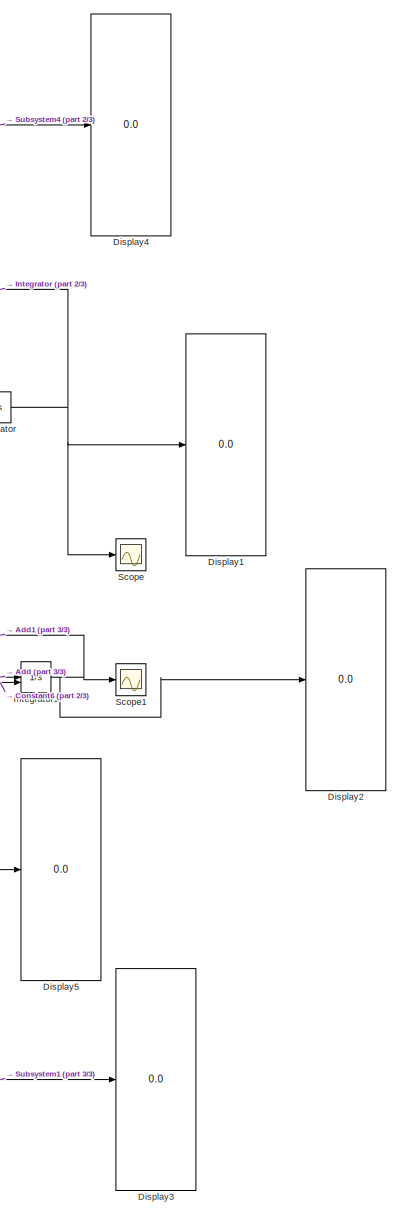
[diagram: root canvas - part 1/3, right side, full height]
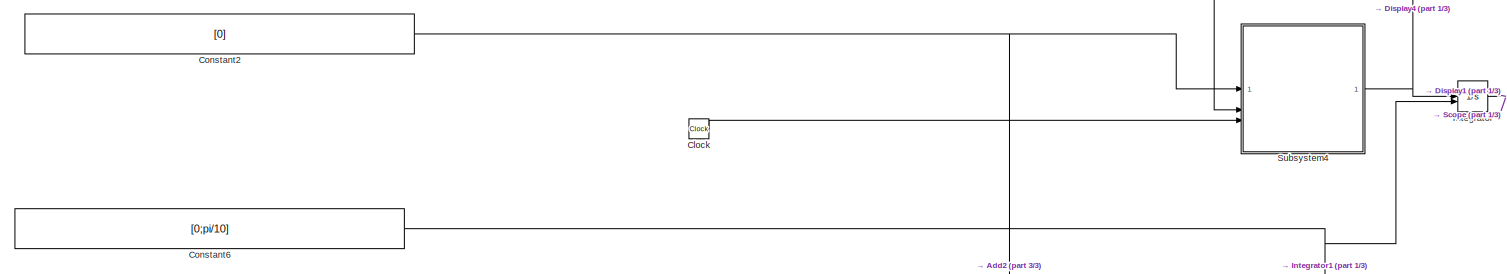
[diagram: root canvas - part 2/3, full width, middle band]
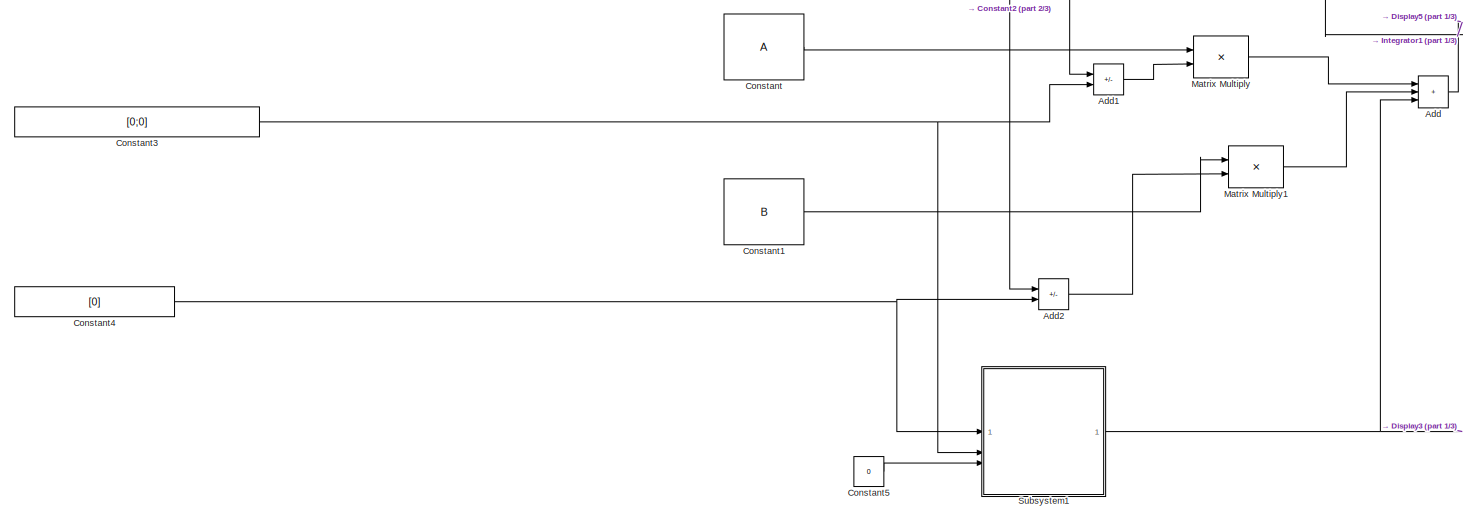
[diagram: root canvas - part 3/3, full width, bottom band]
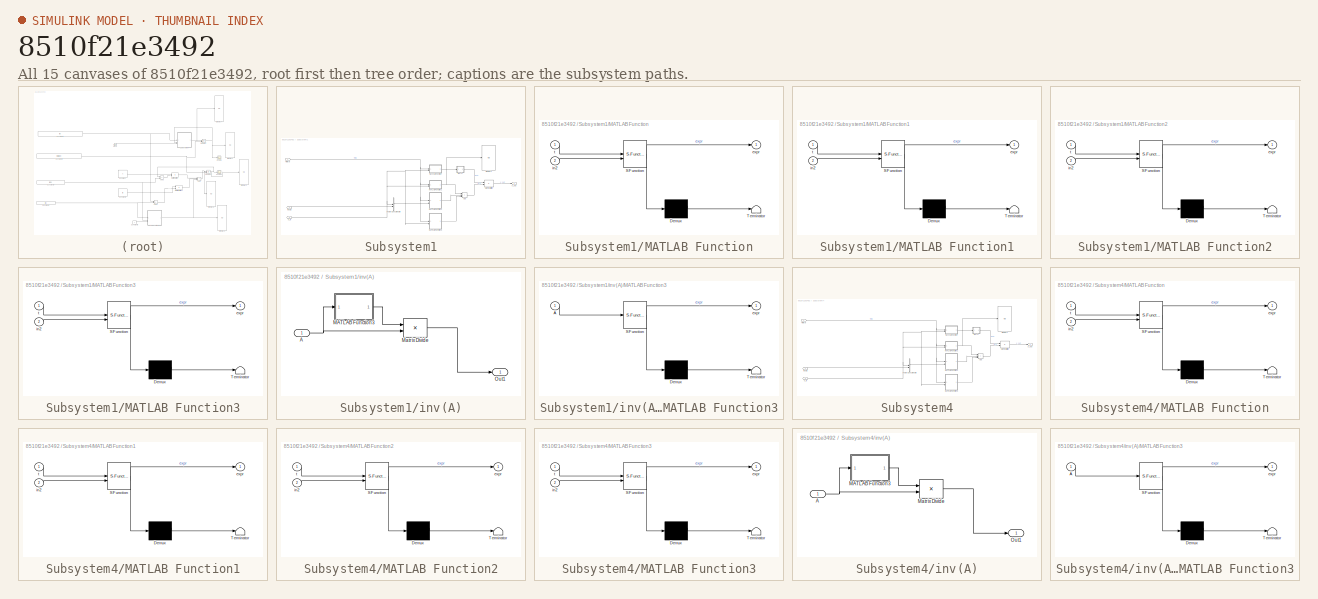
[diagram: thumbnail index - all 15 canvases of the model, root first then tree order]
MODEL slx_8510f21e3492
KIND model
CONFIG AbsTol = auto
CONFIG EnableMultiTasking = off
CONFIG FixedStep = 0.0167
CONFIG MaxStep = auto
CONFIG MinStep = auto
CONFIG RelTol = 1e-3
CONFIG SampleTimeConstraint = Unconstrained
CONFIG SolverName = ode4
CONFIG StartTime = 0.0
CONFIG StopTime = 10
BLOCK [Sum] Add
  IconShape = rectangular
  Inputs = +++
BLOCK [Sum] Add1
  IconShape = rectangular
  Inputs = +-
BLOCK [Sum] Add2
  IconShape = rectangular
  Inputs = +-
BLOCK [Clock] Clock
BLOCK [Constant] Constant
  Value = A
BLOCK [Constant] Constant1
  Value = B
BLOCK [Constant] Constant2
  Value = [0]
BLOCK [Constant] Constant3
  Value = [0;0]
BLOCK [Constant] Constant4
  Value = [0]
BLOCK [Constant] Constant5
  Value = 0
BLOCK [Constant] Constant6
  Value = [0;pi/10]
BLOCK [Display] Display1
  Decimation = 1
BLOCK [Display] Display2
  Decimation = 1
BLOCK [Display] Display3
  Decimation = 1
BLOCK [Display] Display4
  Decimation = 1
BLOCK [Display] Display5
  Decimation = 1
BLOCK [Integrator] Integrator
  InitialConditionSource = external
BLOCK [Integrator] Integrator1
  InitialConditionSource = external
BLOCK [Product] Matrix Multiply
  Multiplication = Matrix(*)
BLOCK [Product] Matrix Multiply1
  Multiplication = Matrix(*)
BLOCK [Scope] Scope
  Floating = off
  NumInputPorts = 1
  ScopeSpecificationString = Simulink.scopes.TimeScopeBlockCfg('CurrentConfiguration', extmgr.ConfigurationSet(extmgr.Configuration('Core','General UI',true),extmgr.Configuration('Core','Source UI',true),extmgr.Configuration('Sources','WiredSimulink',true,'DataLoggingVariableName','ScopeData1'),extmgr.Configuration('Visuals','Time Domain',true,'SerializedDisplays',{struct('MinYLimReal','-1.49942','MaxYLimReal','1.49944','YLab...<+1412ch>
BLOCK [Scope] Scope1
  Floating = off
  NumInputPorts = 1
  ScopeSpecificationString = Simulink.scopes.TimeScopeBlockCfg('CurrentConfiguration', extmgr.ConfigurationSet(extmgr.Configuration('Core','General UI',true),extmgr.Configuration('Core','Source UI',true),extmgr.Configuration('Sources','WiredSimulink',true),extmgr.Configuration('Visuals','Time Domain',true,'SerializedDisplays',{struct('MinYLimReal','-1.50562','MaxYLimReal','1.50563','YLabelReal','','MinYLimMag','0.00000','MaxY...<+1376ch>
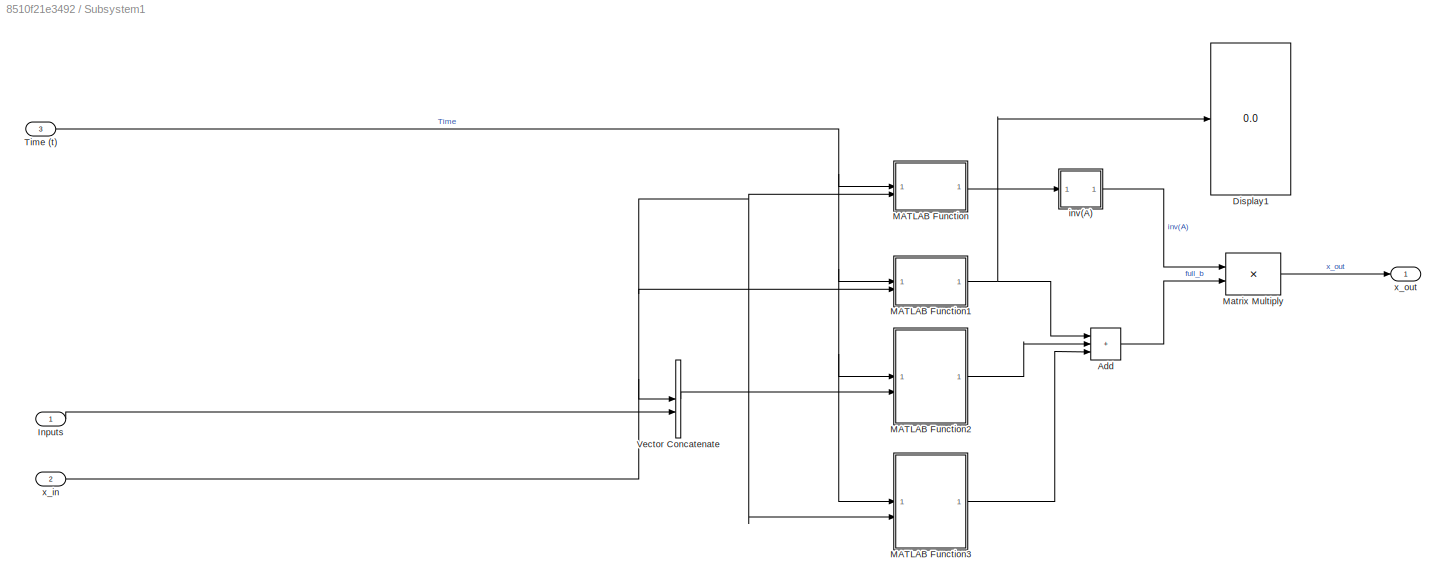
BLOCK [SubSystem] Subsystem1
BLOCK [Sum] Subsystem1/Add
  IconShape = rectangular
  Inputs = +++
BLOCK [Display] Subsystem1/Display1
  Decimation = 1
BLOCK [Inport] Subsystem1/Inputs
BLOCK [SubSystem] Subsystem1/MATLAB Function
  ErrorFcn = Stateflow.Translate.translate
  PermitHierarchicalResolution = ExplicitOnly
  SFBlockType = MATLAB Function
  TreatAsAtomicUnit = on
BLOCK [Demux] Subsystem1/MATLAB Function/ Demux 
  Outputs = 1
BLOCK [S-Function] Subsystem1/MATLAB Function/ SFunction 
  EnableBusSupport = on
  FunctionName = sf_sfun
  PortCounts = [2 2]
  SFcnIsStateOwnerBlock = off
  SFunctionDeploymentMode = off
  Tag = Stateflow S-Function 2
BLOCK [Terminator] Subsystem1/MATLAB Function/ Terminator 
BLOCK [Outport] Subsystem1/MATLAB Function/expr
BLOCK [Inport] Subsystem1/MATLAB Function/in2
  Port = 2
BLOCK [Inport] Subsystem1/MATLAB Function/t
BLOCK [SubSystem] Subsystem1/MATLAB Function1
  ErrorFcn = Stateflow.Translate.translate
  PermitHierarchicalResolution = ExplicitOnly
  SFBlockType = MATLAB Function
  TreatAsAtomicUnit = on
BLOCK [Demux] Subsystem1/MATLAB Function1/ Demux 
  Outputs = 1
BLOCK [S-Function] Subsystem1/MATLAB Function1/ SFunction 
  EnableBusSupport = on
  FunctionName = sf_sfun
  PortCounts = [2 2]
  SFcnIsStateOwnerBlock = off
  SFunctionDeploymentMode = off
  Tag = Stateflow S-Function 3
BLOCK [Terminator] Subsystem1/MATLAB Function1/ Terminator 
BLOCK [Outport] Subsystem1/MATLAB Function1/expr
BLOCK [Inport] Subsystem1/MATLAB Function1/in2
  Port = 2
BLOCK [Inport] Subsystem1/MATLAB Function1/t
BLOCK [SubSystem] Subsystem1/MATLAB Function2
  ErrorFcn = Stateflow.Translate.translate
  PermitHierarchicalResolution = ExplicitOnly
  SFBlockType = MATLAB Function
  TreatAsAtomicUnit = on
BLOCK [Demux] Subsystem1/MATLAB Function2/ Demux 
  Outputs = 1
BLOCK [S-Function] Subsystem1/MATLAB Function2/ SFunction 
  EnableBusSupport = on
  FunctionName = sf_sfun
  PortCounts = [2 2]
  SFcnIsStateOwnerBlock = off
  SFunctionDeploymentMode = off
  Tag = Stateflow S-Function 4
BLOCK [Terminator] Subsystem1/MATLAB Function2/ Terminator 
BLOCK [Outport] Subsystem1/MATLAB Function2/expr
BLOCK [Inport] Subsystem1/MATLAB Function2/in2
  Port = 2
BLOCK [Inport] Subsystem1/MATLAB Function2/t
BLOCK [SubSystem] Subsystem1/MATLAB Function3
  ErrorFcn = Stateflow.Translate.translate
  PermitHierarchicalResolution = ExplicitOnly
  SFBlockType = MATLAB Function
  TreatAsAtomicUnit = on
BLOCK [Demux] Subsystem1/MATLAB Function3/ Demux 
  Outputs = 1
BLOCK [S-Function] Subsystem1/MATLAB Function3/ SFunction 
  EnableBusSupport = on
  FunctionName = sf_sfun
  PortCounts = [2 2]
  SFcnIsStateOwnerBlock = off
  SFunctionDeploymentMode = off
  Tag = Stateflow S-Function 5
BLOCK [Terminator] Subsystem1/MATLAB Function3/ Terminator 
BLOCK [Outport] Subsystem1/MATLAB Function3/expr
BLOCK [Inport] Subsystem1/MATLAB Function3/in2
  Port = 2
BLOCK [Inport] Subsystem1/MATLAB Function3/t
BLOCK [Product] Subsystem1/Matrix Multiply
  Multiplication = Matrix(*)
BLOCK [Inport] Subsystem1/Time (t)
  Port = 3
BLOCK [Concatenate] Subsystem1/Vector Concatenate
BLOCK [SubSystem] Subsystem1/inv(A)
BLOCK [Inport] Subsystem1/inv(A)/A
BLOCK [SubSystem] Subsystem1/inv(A)/MATLAB Function3
  ErrorFcn = Stateflow.Translate.translate
  PermitHierarchicalResolution = ExplicitOnly
  SFBlockType = MATLAB Function
  TreatAsAtomicUnit = on
BLOCK [Demux] Subsystem1/inv(A)/MATLAB Function3/ Demux 
  Outputs = 1
BLOCK [S-Function] Subsystem1/inv(A)/MATLAB Function3/ SFunction 
  EnableBusSupport = on
  FunctionName = sf_sfun
  PortCounts = [1 2]
  SFcnIsStateOwnerBlock = off
  SFunctionDeploymentMode = off
  Tag = Stateflow S-Function 6
BLOCK [Terminator] Subsystem1/inv(A)/MATLAB Function3/ Terminator 
BLOCK [Inport] Subsystem1/inv(A)/MATLAB Function3/A
BLOCK [Outport] Subsystem1/inv(A)/MATLAB Function3/expr
BLOCK [Product] Subsystem1/inv(A)/Matrix Divide
  Inputs = */
  Multiplication = Matrix(*)
BLOCK [Outport] Subsystem1/inv(A)/Out1
BLOCK [Inport] Subsystem1/x_in
  Port = 2
BLOCK [Outport] Subsystem1/x_out
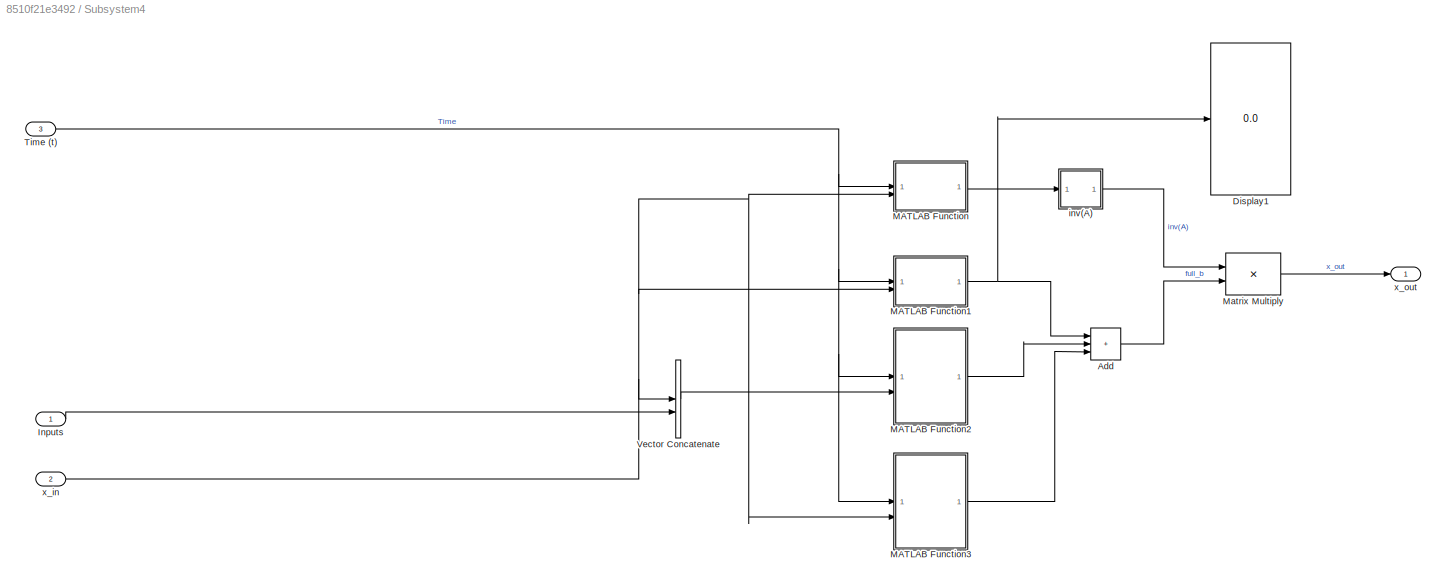
BLOCK [SubSystem] Subsystem4
BLOCK [Sum] Subsystem4/Add
  IconShape = rectangular
  Inputs = +++
BLOCK [Display] Subsystem4/Display1
  Decimation = 1
BLOCK [Inport] Subsystem4/Inputs
BLOCK [SubSystem] Subsystem4/MATLAB Function
  ErrorFcn = Stateflow.Translate.translate
  PermitHierarchicalResolution = ExplicitOnly
  SFBlockType = MATLAB Function
  TreatAsAtomicUnit = on
BLOCK [Demux] Subsystem4/MATLAB Function/ Demux 
  Outputs = 1
BLOCK [S-Function] Subsystem4/MATLAB Function/ SFunction 
  EnableBusSupport = on
  FunctionName = sf_sfun
  PortCounts = [2 2]
  SFcnIsStateOwnerBlock = off
  SFunctionDeploymentMode = off
  Tag = Stateflow S-Function 17
BLOCK [Terminator] Subsystem4/MATLAB Function/ Terminator 
BLOCK [Outport] Subsystem4/MATLAB Function/expr
BLOCK [Inport] Subsystem4/MATLAB Function/in2
  Port = 2
BLOCK [Inport] Subsystem4/MATLAB Function/t
BLOCK [SubSystem] Subsystem4/MATLAB Function1
  ErrorFcn = Stateflow.Translate.translate
  PermitHierarchicalResolution = ExplicitOnly
  SFBlockType = MATLAB Function
  TreatAsAtomicUnit = on
BLOCK [Demux] Subsystem4/MATLAB Function1/ Demux 
  Outputs = 1
BLOCK [S-Function] Subsystem4/MATLAB Function1/ SFunction 
  EnableBusSupport = on
  FunctionName = sf_sfun
  PortCounts = [2 2]
  SFcnIsStateOwnerBlock = off
  SFunctionDeploymentMode = off
  Tag = Stateflow S-Function 18
BLOCK [Terminator] Subsystem4/MATLAB Function1/ Terminator 
BLOCK [Outport] Subsystem4/MATLAB Function1/expr
BLOCK [Inport] Subsystem4/MATLAB Function1/in2
  Port = 2
BLOCK [Inport] Subsystem4/MATLAB Function1/t
BLOCK [SubSystem] Subsystem4/MATLAB Function2
  ErrorFcn = Stateflow.Translate.translate
  PermitHierarchicalResolution = ExplicitOnly
  SFBlockType = MATLAB Function
  TreatAsAtomicUnit = on
BLOCK [Demux] Subsystem4/MATLAB Function2/ Demux 
  Outputs = 1
BLOCK [S-Function] Subsystem4/MATLAB Function2/ SFunction 
  EnableBusSupport = on
  FunctionName = sf_sfun
  PortCounts = [2 2]
  SFcnIsStateOwnerBlock = off
  SFunctionDeploymentMode = off
  Tag = Stateflow S-Function 19
BLOCK [Terminator] Subsystem4/MATLAB Function2/ Terminator 
BLOCK [Outport] Subsystem4/MATLAB Function2/expr
BLOCK [Inport] Subsystem4/MATLAB Function2/in2
  Port = 2
BLOCK [Inport] Subsystem4/MATLAB Function2/t
BLOCK [SubSystem] Subsystem4/MATLAB Function3
  ErrorFcn = Stateflow.Translate.translate
  PermitHierarchicalResolution = ExplicitOnly
  SFBlockType = MATLAB Function
  TreatAsAtomicUnit = on
BLOCK [Demux] Subsystem4/MATLAB Function3/ Demux 
  Outputs = 1
BLOCK [S-Function] Subsystem4/MATLAB Function3/ SFunction 
  EnableBusSupport = on
  FunctionName = sf_sfun
  PortCounts = [2 2]
  SFcnIsStateOwnerBlock = off
  SFunctionDeploymentMode = off
  Tag = Stateflow S-Function 1
BLOCK [Terminator] Subsystem4/MATLAB Function3/ Terminator 
BLOCK [Outport] Subsystem4/MATLAB Function3/expr
BLOCK [Inport] Subsystem4/MATLAB Function3/in2
  Port = 2
BLOCK [Inport] Subsystem4/MATLAB Function3/t
BLOCK [Product] Subsystem4/Matrix Multiply
  Multiplication = Matrix(*)
BLOCK [Inport] Subsystem4/Time (t)
  Port = 3
BLOCK [Concatenate] Subsystem4/Vector Concatenate
BLOCK [SubSystem] Subsystem4/inv(A)
BLOCK [Inport] Subsystem4/inv(A)/A
BLOCK [SubSystem] Subsystem4/inv(A)/MATLAB Function3
  ErrorFcn = Stateflow.Translate.translate
  PermitHierarchicalResolution = ExplicitOnly
  SFBlockType = MATLAB Function
  TreatAsAtomicUnit = on
BLOCK [Demux] Subsystem4/inv(A)/MATLAB Function3/ Demux 
  Outputs = 1
BLOCK [S-Function] Subsystem4/inv(A)/MATLAB Function3/ SFunction 
  EnableBusSupport = on
  FunctionName = sf_sfun
  PortCounts = [1 2]
  SFcnIsStateOwnerBlock = off
  SFunctionDeploymentMode = off
  Tag = Stateflow S-Function 20
BLOCK [Terminator] Subsystem4/inv(A)/MATLAB Function3/ Terminator 
BLOCK [Inport] Subsystem4/inv(A)/MATLAB Function3/A
BLOCK [Outport] Subsystem4/inv(A)/MATLAB Function3/expr
BLOCK [Product] Subsystem4/inv(A)/Matrix Divide
  Inputs = */
  Multiplication = Matrix(*)
BLOCK [Outport] Subsystem4/inv(A)/Out1
BLOCK [Inport] Subsystem4/x_in
  Port = 2
BLOCK [Outport] Subsystem4/x_out
LINE Add1:1 -> Matrix Multiply:2
LINE Add2:1 -> Matrix Multiply1:2
NET Add:1 -> Display5:1, Integrator1:1
LINE Clock:1 -> Subsystem4:3
LINE Constant1:1 -> Matrix Multiply1:1
NET Constant2:1 -> Add2:1, Subsystem4:1
NET Constant3:1 -> Add1:2, Subsystem1:2
NET Constant4:1 -> Add2:2, Subsystem1:1
LINE Constant5:1 -> Subsystem1:3
NET Constant6:1 -> Integrator1:2, Integrator:2
LINE Constant:1 -> Matrix Multiply:1
NET Integrator1:1 -> Add1:1, Display2:1, Scope1:1
NET Integrator:1 -> Display1:1, Scope:1, Subsystem4:2
LINE Matrix Multiply1:1 -> Add:2
LINE Matrix Multiply:1 -> Add:1
LINE Subsystem1/Add:1 -> Subsystem1/Matrix Multiply:2
LINE Subsystem1/Inputs:1 -> Subsystem1/Vector Concatenate:2
NET Subsystem1/MATLAB Function1:1 -> Subsystem1/Add:1, Subsystem1/Display1:1
LINE Subsystem1/MATLAB Function2:1 -> Subsystem1/Add:2
LINE Subsystem1/MATLAB Function3:1 -> Subsystem1/Add:3
LINE Subsystem1/MATLAB Function:1 -> Subsystem1/inv(A):1
LINE Subsystem1/Matrix Multiply:1 -> Subsystem1/x_out:1
NET Subsystem1/Time (t):1 -> Subsystem1/MATLAB Function1:1, Subsystem1/MATLAB Function2:1, Subsystem1/MATLAB Function3:1, Subsystem1/MATLAB Function:1
LINE Subsystem1/Vector Concatenate:1 -> Subsystem1/MATLAB Function2:2
NET Subsystem1/inv(A)/A:1 -> Subsystem1/inv(A)/MATLAB Function3:1, Subsystem1/inv(A)/Matrix Divide:2
LINE Subsystem1/inv(A)/MATLAB Function3:1 -> Subsystem1/inv(A)/Matrix Divide:1
LINE Subsystem1/inv(A)/Matrix Divide:1 -> Subsystem1/inv(A)/Out1:1
LINE Subsystem1/inv(A):1 -> Subsystem1/Matrix Multiply:1
NET Subsystem1/x_in:1 -> Subsystem1/MATLAB Function1:2, Subsystem1/MATLAB Function3:2, Subsystem1/MATLAB Function:2, Subsystem1/Vector Concatenate:1
NET Subsystem1:1 -> Add:3, Display3:1
LINE Subsystem4/Add:1 -> Subsystem4/Matrix Multiply:2
LINE Subsystem4/Inputs:1 -> Subsystem4/Vector Concatenate:2
NET Subsystem4/MATLAB Function1:1 -> Subsystem4/Add:1, Subsystem4/Display1:1
LINE Subsystem4/MATLAB Function2:1 -> Subsystem4/Add:2
LINE Subsystem4/MATLAB Function3:1 -> Subsystem4/Add:3
LINE Subsystem4/MATLAB Function:1 -> Subsystem4/inv(A):1
LINE Subsystem4/Matrix Multiply:1 -> Subsystem4/x_out:1
NET Subsystem4/Time (t):1 -> Subsystem4/MATLAB Function1:1, Subsystem4/MATLAB Function2:1, Subsystem4/MATLAB Function3:1, Subsystem4/MATLAB Function:1
LINE Subsystem4/Vector Concatenate:1 -> Subsystem4/MATLAB Function2:2
NET Subsystem4/inv(A)/A:1 -> Subsystem4/inv(A)/MATLAB Function3:1, Subsystem4/inv(A)/Matrix Divide:2
LINE Subsystem4/inv(A)/MATLAB Function3:1 -> Subsystem4/inv(A)/Matrix Divide:1
LINE Subsystem4/inv(A)/Matrix Divide:1 -> Subsystem4/inv(A)/Out1:1
LINE Subsystem4/inv(A):1 -> Subsystem4/Matrix Multiply:1
NET Subsystem4/x_in:1 -> Subsystem4/MATLAB Function1:2, Subsystem4/MATLAB Function3:2, Subsystem4/MATLAB Function:2, Subsystem4/Vector Concatenate:1
NET Subsystem4:1 -> Display4:1, Integrator:1
note: NET lines group one-source signal fan-out (src -> all destinations, sorted); 1:1 wires keep LINE
CHART Subsystem1/MATLAB Function states=1 transitions=1
  STATE_LABEL 'eML_blk_kernel()'
  STATE_LABEL 'SCRIPT:\nfunction expr = A(t,in2)\nexpr = A_uv(t,in2);\nend\n'
CHART Subsystem1/MATLAB Function1 states=1 transitions=1
  STATE_LABEL 'eML_blk_kernel()'
  STATE_LABEL 'SCRIPT:\nfunction expr = b(t,in2)\n\nexpr = b_uv(t,in2);\n\nend\n'
CHART Subsystem1/MATLAB Function2 states=1 transitions=1
  STATE_LABEL 'eML_blk_kernel()'
  STATE_LABEL 'SCRIPT:\nfunction expr = input_b(t,in2)\n\nexpr = input_b_uv(t,in2);\n\nend\n'
CHART Subsystem1/MATLAB Function3 states=1 transitions=1
  STATE_LABEL 'eML_blk_kernel()'
  STATE_LABEL 'SCRIPT:\nfunction expr = v(t,in2)\n\nexpr = v_uv(t,in2);\n\nend\n'
CHART Subsystem1/inv(A)/MATLAB Function3 states=1 transitions=1
  STATE_LABEL 'eML_blk_kernel()'
  STATE_LABEL 'SCRIPT:\nfunction expr = EYE(A)\nn = size(A);\nexpr = eye(n);\nend\n'
CHART Subsystem4/MATLAB Function states=1 transitions=1
  STATE_LABEL 'eML_blk_kernel()'
  STATE_LABEL 'SCRIPT:\nfunction expr = A(t,in2)\nexpr = A_uv(t,in2);\nend\n'
CHART Subsystem4/MATLAB Function1 states=1 transitions=1
  STATE_LABEL 'eML_blk_kernel()'
  STATE_LABEL 'SCRIPT:\nfunction expr = b(t,in2)\n\nexpr = b_uv(t,in2);\n\nend\n'
CHART Subsystem4/MATLAB Function2 states=1 transitions=1
  STATE_LABEL 'eML_blk_kernel()'
  STATE_LABEL 'SCRIPT:\nfunction expr = input_b(t,in2)\n\nexpr = input_b_uv(t,in2);\n\nend\n'
CHART Subsystem4/inv(A)/MATLAB Function3 states=1 transitions=1
  STATE_LABEL 'eML_blk_kernel()'
  STATE_LABEL 'SCRIPT:\nfunction expr = EYE(A)\nn = size(A);\nexpr = eye(n);\nend\n'
CHART Subsystem4/MATLAB Function3 states=1 transitions=1
  STATE_LABEL 'eML_blk_kernel()'
  STATE_LABEL 'SCRIPT:\nfunction expr = v(t,in2)\n\nexpr = v_uv(t,in2);\n\nend\n'
CHART  states=0 transitions=0
CHART  states=0 transitions=0
CHART  states=0 transitions=0
CHART  states=0 transitions=0
CHART  states=0 transitions=0
CHART  states=0 transitions=0
CHART  states=0 transitions=0
CHART  states=0 transitions=0
CHART  states=0 transitions=0
CHART  states=0 transitions=0
